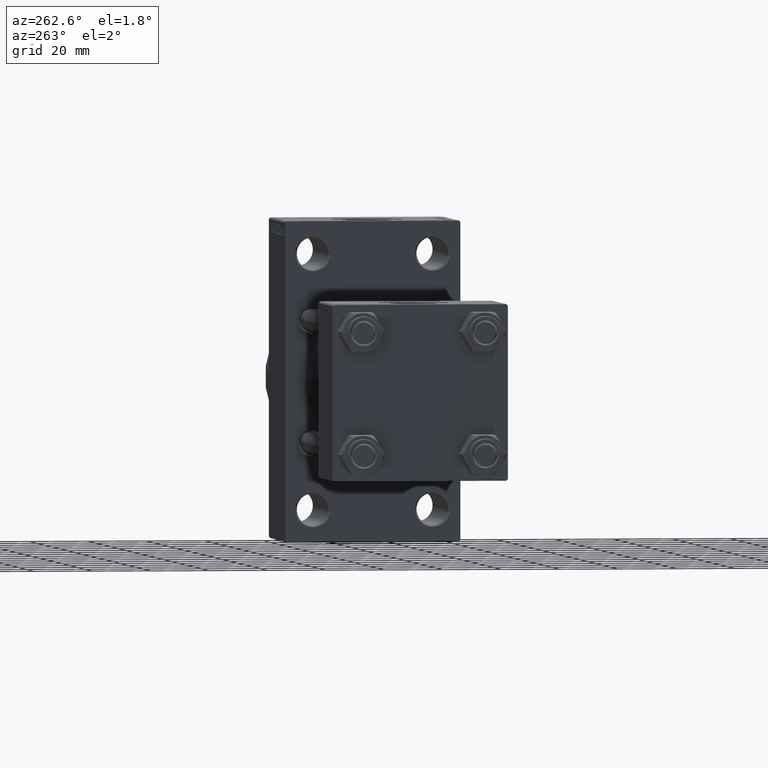
[diagram: clean part render]
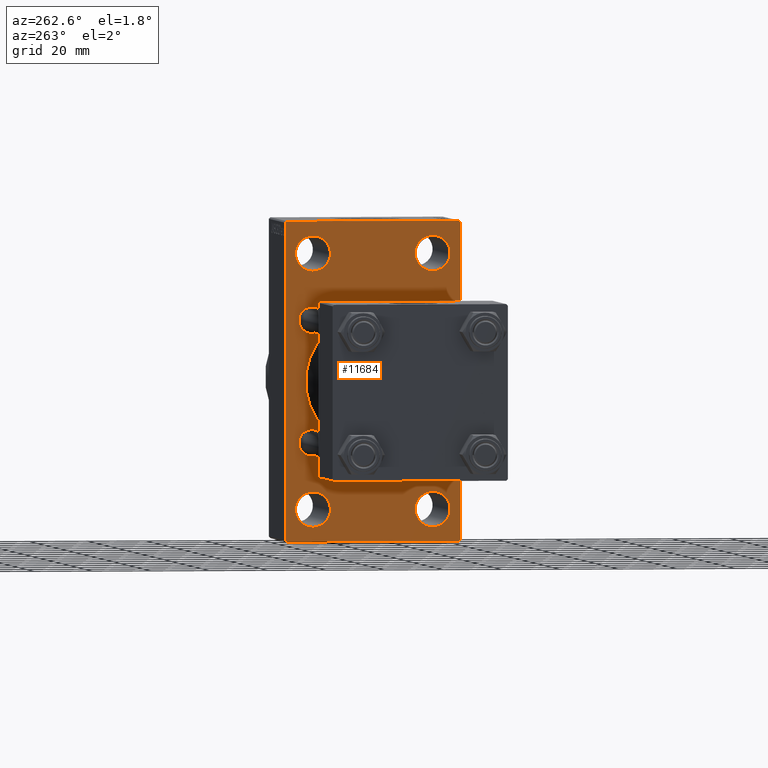
[diagram: same view with one face highlighted and labeled with its STEP entity id]
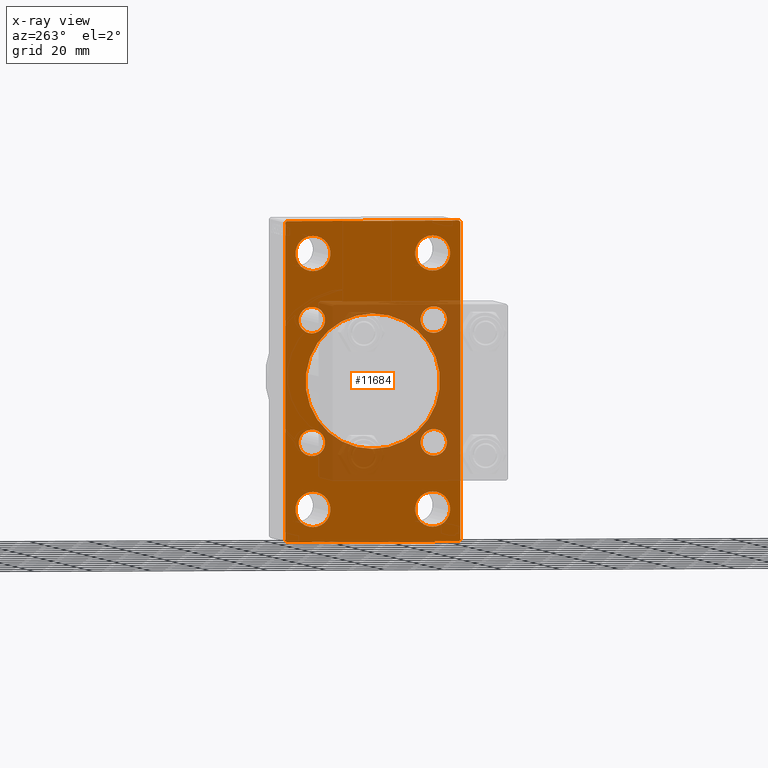
[diagram: x-ray of the same camera — body ghosted, the highlighted face saturated]
A machine part, auxiliary view. The second image highlights one B-rep face of the part: STEP entity #11684.
The next image is the same camera in x-ray: the body ghosted, the highlighted face saturated — about 30% of this face is hidden behind the body in this view.
In plain terms, the highlighted planar face has unit normal (-1, 0, 0).
Its self-contained STEP definition (entity closure, byte-faithful):
#372 = CARTESIAN_POINT ( 'NONE',  ( 125.0000000000000000, 0.000000000000000000, 0.000000000000000000 ) ) ;
#469 = ORIENTED_EDGE ( 'NONE', *, *, #17331, .T. ) ;
#602 = FACE_BOUND ( 'NONE', #41893, .T. ) ;
#668 = CARTESIAN_POINT ( 'NONE',  ( 125.0000000000000000, 29.99999999999999645, -54.49999999999999289 ) ) ;
#694 = EDGE_CURVE ( 'NONE', #26565, #11789, #12203, .T. ) ;
#1002 = DIRECTION ( 'NONE',  ( 1.000000000000000000, -0.000000000000000000, 0.000000000000000000 ) ) ;
#1253 = ORIENTED_EDGE ( 'NONE', *, *, #45491, .T. ) ;
#1782 = EDGE_LOOP ( 'NONE', ( #36041, #32735 ) ) ;
#2308 = VECTOR ( 'NONE', #32911, 1000.000000000000000 ) ;
#2383 = DIRECTION ( 'NONE',  ( 1.000000000000000000, -0.000000000000000000, 0.000000000000000000 ) ) ;
#2419 = DIRECTION ( 'NONE',  ( 0.000000000000000000, 0.000000000000000000, 1.000000000000000000 ) ) ;
#2771 = ORIENTED_EDGE ( 'NONE', *, *, #27358, .T. ) ;
#2783 = AXIS2_PLACEMENT_3D ( 'NONE', #4767, #19319, #4304 ) ;
#3016 = DIRECTION ( 'NONE',  ( 0.000000000000000000, 0.000000000000000000, 1.000000000000000000 ) ) ;
#3372 = ORIENTED_EDGE ( 'NONE', *, *, #36318, .T. ) ;
#3386 = VERTEX_POINT ( 'NONE', #46190 ) ;
#3705 = EDGE_CURVE ( 'NONE', #41054, #24619, #41200, .T. ) ;
#4087 = CIRCLE ( 'NONE', #26163, 5.999999999999977796 ) ;
#4304 = DIRECTION ( 'NONE',  ( 0.000000000000000000, 0.000000000000000000, 1.000000000000000000 ) ) ;
#4371 = CIRCLE ( 'NONE', #31032, 5.999999999999977796 ) ;
#4520 = EDGE_CURVE ( 'NONE', #31603, #39933, #17596, .T. ) ;
#4767 = CARTESIAN_POINT ( 'NONE',  ( 125.0000000000000000, 20.84999999999999787, -20.85000000000000142 ) ) ;
#5124 = ORIENTED_EDGE ( 'NONE', *, *, #27190, .T. ) ;
#5670 = CARTESIAN_POINT ( 'NONE',  ( 125.0000000000000000, -2.602085213965210642E-15, 0.000000000000000000 ) ) ;
#5674 = CARTESIAN_POINT ( 'NONE',  ( 125.0000000000000000, 20.50000000000000000, 49.49999999999997158 ) ) ;
#6123 = CARTESIAN_POINT ( 'NONE',  ( 125.0000000000000000, 20.50000000000000000, -37.50000000000002132 ) ) ;
#6319 = LINE ( 'NONE', #20865, #13209 ) ;
#6537 = CARTESIAN_POINT ( 'NONE',  ( 125.0000000000000000, -30.00000000000000000, 54.50000000000000000 ) ) ;
#6542 = VECTOR ( 'NONE', #7865, 1000.000000000000114 ) ;
#6711 = ORIENTED_EDGE ( 'NONE', *, *, #45604, .T. ) ;
#6966 = DIRECTION ( 'NONE',  ( 0.000000000000000000, 0.000000000000000000, 1.000000000000000000 ) ) ;
#7298 = FACE_OUTER_BOUND ( 'NONE', #38842, .T. ) ;
#7372 = CARTESIAN_POINT ( 'NONE',  ( 125.0000000000000000, 29.99999999999999645, 53.99999999999999289 ) ) ;
#7451 = VERTEX_POINT ( 'NONE', #9719 ) ;
#7567 = ORIENTED_EDGE ( 'NONE', *, *, #18207, .F. ) ;
#7683 = ORIENTED_EDGE ( 'NONE', *, *, #9079, .T. ) ;
#7865 = DIRECTION ( 'NONE',  ( -0.000000000000000000, -0.7071067811865474617, -0.7071067811865474617 ) ) ;
#8385 = AXIS2_PLACEMENT_3D ( 'NONE', #15452, #10691, #29065 ) ;
#8474 = VERTEX_POINT ( 'NONE', #27917 ) ;
#8579 = CARTESIAN_POINT ( 'NONE',  ( 125.0000000000000000, -20.84999999999999076, 20.85000000000000497 ) ) ;
#8595 = VERTEX_POINT ( 'NONE', #18379 ) ;
#8707 = DIRECTION ( 'NONE',  ( 1.000000000000000000, -0.000000000000000000, 0.000000000000000000 ) ) ;
#9079 = EDGE_CURVE ( 'NONE', #27311, #37116, #39064, .T. ) ;
#9118 = EDGE_CURVE ( 'NONE', #24619, #41054, #16181, .T. ) ;
#9199 = CARTESIAN_POINT ( 'NONE',  ( 125.0000000000000000, -2.602085213965210642E-15, 23.00000000000000000 ) ) ;
#9223 = ORIENTED_EDGE ( 'NONE', *, *, #32343, .T. ) ;
#9360 = CARTESIAN_POINT ( 'NONE',  ( 125.0000000000000000, 20.84999999999999787, 16.34999999999999432 ) ) ;
#9410 = VECTOR ( 'NONE', #21653, 1000.000000000000000 ) ;
#9488 = LINE ( 'NONE', #23342, #20090 ) ;
#9719 = CARTESIAN_POINT ( 'NONE',  ( 125.0000000000000000, -20.50000000000000000, 49.49999999999997158 ) ) ;
#9907 = DIRECTION ( 'NONE',  ( 1.000000000000000000, -0.000000000000000000, 0.000000000000000000 ) ) ;
#10025 = DIRECTION ( 'NONE',  ( 0.000000000000000000, 0.000000000000000000, 1.000000000000000000 ) ) ;
#10603 = AXIS2_PLACEMENT_3D ( 'NONE', #32977, #40629, #32728 ) ;
#10655 = ORIENTED_EDGE ( 'NONE', *, *, #40623, .T. ) ;
#10691 = DIRECTION ( 'NONE',  ( 1.000000000000000000, -0.000000000000000000, 0.000000000000000000 ) ) ;
#10869 = CARTESIAN_POINT ( 'NONE',  ( 125.0000000000000000, 29.49999999999999645, -54.49999999999999289 ) ) ;
#11214 = LINE ( 'NONE', #42155, #40654 ) ;
#11604 = AXIS2_PLACEMENT_3D ( 'NONE', #35465, #9907, #17318 ) ;
#11684 = ADVANCED_FACE ( 'NONE', ( #40248, #47170, #18272, #44545, #40734, #44299, #11822, #25894, #602, #7298 ), #39767, .T. ) ;
#11789 = VERTEX_POINT ( 'NONE', #13656 ) ;
#11822 = FACE_BOUND ( 'NONE', #39476, .T. ) ;
#11970 = ORIENTED_EDGE ( 'NONE', *, *, #9118, .T. ) ;
#12203 = CIRCLE ( 'NONE', #21360, 4.500000000000007105 ) ;
#12697 = CIRCLE ( 'NONE', #2783, 4.500000000000007105 ) ;
#12791 = LINE ( 'NONE', #24236, #37192 ) ;
#12857 = EDGE_CURVE ( 'NONE', #40174, #15334, #25836, .T. ) ;
#13067 = CIRCLE ( 'NONE', #11604, 4.500000000000007105 ) ;
#13163 = EDGE_LOOP ( 'NONE', ( #28142, #11970 ) ) ;
#13209 = VECTOR ( 'NONE', #35445, 1000.000000000000000 ) ;
#13462 = CARTESIAN_POINT ( 'NONE',  ( 125.0000000000000000, 20.50000000000000000, 43.50000000000000000 ) ) ;
#13515 = CARTESIAN_POINT ( 'NONE',  ( 125.0000000000000000, -20.50000000000000000, 43.50000000000000000 ) ) ;
#13524 = VERTEX_POINT ( 'NONE', #38520 ) ;
#13656 = CARTESIAN_POINT ( 'NONE',  ( 125.0000000000000000, -20.84999999999999076, 25.35000000000001208 ) ) ;
#13788 = AXIS2_PLACEMENT_3D ( 'NONE', #5670, #16629, #26289 ) ;
#13915 = LINE ( 'NONE', #6537, #45847 ) ;
#14534 = EDGE_CURVE ( 'NONE', #39933, #31603, #22075, .T. ) ;
#14690 = VERTEX_POINT ( 'NONE', #40356 ) ;
#14923 = DIRECTION ( 'NONE',  ( -0.000000000000000000, 0.000000000000000000, 1.000000000000000000 ) ) ;
#14988 = ORIENTED_EDGE ( 'NONE', *, *, #46451, .T. ) ;
#15334 = VERTEX_POINT ( 'NONE', #38929 ) ;
#15403 = AXIS2_PLACEMENT_3D ( 'NONE', #26178, #19466, #23281 ) ;
#15452 = CARTESIAN_POINT ( 'NONE',  ( 125.0000000000000000, -20.84999999999999076, -20.85000000000000497 ) ) ;
#15573 = EDGE_LOOP ( 'NONE', ( #6711, #16727 ) ) ;
#15753 = ORIENTED_EDGE ( 'NONE', *, *, #19648, .T. ) ;
#15774 = EDGE_CURVE ( 'NONE', #42495, #13524, #28959, .T. ) ;
#16181 = CIRCLE ( 'NONE', #42890, 5.999999999999977796 ) ;
#16287 = CARTESIAN_POINT ( 'NONE',  ( 125.0000000000000000, 20.84999999999999787, -16.34999999999999432 ) ) ;
#16316 = DIRECTION ( 'NONE',  ( 0.000000000000000000, 0.000000000000000000, 1.000000000000000000 ) ) ;
#16501 = CARTESIAN_POINT ( 'NONE',  ( 125.0000000000000000, 20.50000000000000000, -43.50000000000000000 ) ) ;
#16629 = DIRECTION ( 'NONE',  ( 1.000000000000000000, 0.000000000000000000, 0.000000000000000000 ) ) ;
#16727 = ORIENTED_EDGE ( 'NONE', *, *, #694, .T. ) ;
#16925 = ORIENTED_EDGE ( 'NONE', *, *, #35300, .T. ) ;
#17318 = DIRECTION ( 'NONE',  ( 0.000000000000000000, 0.000000000000000000, 1.000000000000000000 ) ) ;
#17331 = EDGE_CURVE ( 'NONE', #13524, #42495, #42775, .T. ) ;
#17573 = VERTEX_POINT ( 'NONE', #34660 ) ;
#17596 = CIRCLE ( 'NONE', #20597, 4.500000000000007105 ) ;
#17919 = CARTESIAN_POINT ( 'NONE',  ( 125.0000000000000000, -20.50000000000000000, 43.50000000000000000 ) ) ;
#18202 = CARTESIAN_POINT ( 'NONE',  ( 125.0000000000000000, 20.50000000000000000, 43.50000000000000000 ) ) ;
#18207 = EDGE_CURVE ( 'NONE', #31197, #25908, #13915, .T. ) ;
#18272 = FACE_BOUND ( 'NONE', #1782, .T. ) ;
#18379 = CARTESIAN_POINT ( 'NONE',  ( 125.0000000000000000, 20.84999999999999787, -25.35000000000000853 ) ) ;
#18491 = CIRCLE ( 'NONE', #31516, 23.00000000000000000 ) ;
#19098 = EDGE_LOOP ( 'NONE', ( #29808, #34315 ) ) ;
#19281 = LINE ( 'NONE', #668, #2308 ) ;
#19303 = DIRECTION ( 'NONE',  ( -0.000000000000000000, 0.7071067811865451302, 0.7071067811865500152 ) ) ;
#19319 = DIRECTION ( 'NONE',  ( 1.000000000000000000, -0.000000000000000000, 0.000000000000000000 ) ) ;
#19466 = DIRECTION ( 'NONE',  ( 1.000000000000000000, -0.000000000000000000, 0.000000000000000000 ) ) ;
#19648 = EDGE_CURVE ( 'NONE', #8595, #45955, #13067, .T. ) ;
#19955 = DIRECTION ( 'NONE',  ( 0.000000000000000000, -1.000000000000000000, 1.156482317317871478E-16 ) ) ;
#20090 = VECTOR ( 'NONE', #19303, 1000.000000000000114 ) ;
#20558 = VERTEX_POINT ( 'NONE', #43597 ) ;
#20597 = AXIS2_PLACEMENT_3D ( 'NONE', #25813, #35844, #6966 ) ;
#20865 = CARTESIAN_POINT ( 'NONE',  ( 125.0000000000000000, 42.00000000000082423, 41.99999999999849365 ) ) ;
#21088 = VERTEX_POINT ( 'NONE', #7372 ) ;
#21360 = AXIS2_PLACEMENT_3D ( 'NONE', #8579, #41981, #26480 ) ;
#21653 = DIRECTION ( 'NONE',  ( 0.000000000000000000, -0.7071067811865352493, 0.7071067811865597852 ) ) ;
#22065 = DIRECTION ( 'NONE',  ( -1.000000000000000000, 0.000000000000000000, -0.000000000000000000 ) ) ;
#22075 = CIRCLE ( 'NONE', #31989, 4.500000000000007105 ) ;
#22186 = AXIS2_PLACEMENT_3D ( 'NONE', #13462, #28505, #32339 ) ;
#22299 = AXIS2_PLACEMENT_3D ( 'NONE', #18202, #1002, #43762 ) ;
#22380 = CARTESIAN_POINT ( 'NONE',  ( 125.0000000000000000, -2.602085213965210642E-15, 0.000000000000000000 ) ) ;
#23281 = DIRECTION ( 'NONE',  ( 0.000000000000000000, 0.000000000000000000, 1.000000000000000000 ) ) ;
#23342 = CARTESIAN_POINT ( 'NONE',  ( 125.0000000000000000, -42.00000000000008527, 41.99999999999979394 ) ) ;
#23669 = CARTESIAN_POINT ( 'NONE',  ( 125.0000000000000000, -20.50000000000000000, -43.50000000000000000 ) ) ;
#23734 = EDGE_CURVE ( 'NONE', #8474, #35956, #18491, .T. ) ;
#23974 = ORIENTED_EDGE ( 'NONE', *, *, #38476, .T. ) ;
#24101 = CARTESIAN_POINT ( 'NONE',  ( 125.0000000000000000, 20.84999999999999787, 20.85000000000000142 ) ) ;
#24236 = CARTESIAN_POINT ( 'NONE',  ( 125.0000000000000000, 29.99999999999999645, 54.49999999999999289 ) ) ;
#24619 = VERTEX_POINT ( 'NONE', #38501 ) ;
#24688 = ORIENTED_EDGE ( 'NONE', *, *, #40221, .T. ) ;
#25052 = DIRECTION ( 'NONE',  ( 0.000000000000000000, 0.000000000000000000, 1.000000000000000000 ) ) ;
#25075 = EDGE_CURVE ( 'NONE', #21088, #20558, #11214, .T. ) ;
#25093 = EDGE_LOOP ( 'NONE', ( #7683, #10655 ) ) ;
#25813 = CARTESIAN_POINT ( 'NONE',  ( 125.0000000000000000, 20.84999999999999787, 20.85000000000000142 ) ) ;
#25836 = CIRCLE ( 'NONE', #10603, 5.999999999999977796 ) ;
#25894 = FACE_BOUND ( 'NONE', #45482, .T. ) ;
#25908 = VERTEX_POINT ( 'NONE', #31742 ) ;
#25961 = DIRECTION ( 'NONE',  ( 0.000000000000000000, 0.000000000000000000, -1.000000000000000000 ) ) ;
#26163 = AXIS2_PLACEMENT_3D ( 'NONE', #13515, #39083, #3016 ) ;
#26178 = CARTESIAN_POINT ( 'NONE',  ( 125.0000000000000000, -20.84999999999999076, 20.85000000000000497 ) ) ;
#26196 = CARTESIAN_POINT ( 'NONE',  ( 125.0000000000000000, -29.50000000000000355, -54.50000000000000000 ) ) ;
#26289 = DIRECTION ( 'NONE',  ( 0.000000000000000000, 0.000000000000000000, -1.000000000000000000 ) ) ;
#26449 = VERTEX_POINT ( 'NONE', #26196 ) ;
#26480 = DIRECTION ( 'NONE',  ( 0.000000000000000000, 0.000000000000000000, 1.000000000000000000 ) ) ;
#26565 = VERTEX_POINT ( 'NONE', #40667 ) ;
#27052 = CIRCLE ( 'NONE', #40030, 5.999999999999977796 ) ;
#27070 = CARTESIAN_POINT ( 'NONE',  ( 125.0000000000000000, -20.84999999999999076, -20.85000000000000497 ) ) ;
#27190 = EDGE_CURVE ( 'NONE', #14690, #21088, #6319, .T. ) ;
#27311 = VERTEX_POINT ( 'NONE', #5674 ) ;
#27358 = EDGE_CURVE ( 'NONE', #31197, #17573, #9488, .T. ) ;
#27724 = DIRECTION ( 'NONE',  ( 0.000000000000000000, 0.000000000000000000, 1.000000000000000000 ) ) ;
#27821 = ORIENTED_EDGE ( 'NONE', *, *, #23734, .T. ) ;
#27917 = CARTESIAN_POINT ( 'NONE',  ( 125.0000000000000000, 2.146024240737016609E-16, -23.00000000000000000 ) ) ;
#28142 = ORIENTED_EDGE ( 'NONE', *, *, #3705, .T. ) ;
#28474 = CARTESIAN_POINT ( 'NONE',  ( 125.0000000000000000, 20.50000000000000000, 37.50000000000002132 ) ) ;
#28505 = DIRECTION ( 'NONE',  ( 1.000000000000000000, -0.000000000000000000, 0.000000000000000000 ) ) ;
#28810 = CARTESIAN_POINT ( 'NONE',  ( 125.0000000000000000, -42.00000000000051159, -41.99999999999905498 ) ) ;
#28959 = CIRCLE ( 'NONE', #8385, 4.500000000000007105 ) ;
#29065 = DIRECTION ( 'NONE',  ( 0.000000000000000000, 0.000000000000000000, 1.000000000000000000 ) ) ;
#29070 = CIRCLE ( 'NONE', #13788, 23.00000000000000000 ) ;
#29541 = DIRECTION ( 'NONE',  ( 1.000000000000000000, 0.000000000000000000, 0.000000000000000000 ) ) ;
#29742 = CARTESIAN_POINT ( 'NONE',  ( 125.0000000000000000, -20.50000000000000000, -37.50000000000002132 ) ) ;
#29808 = ORIENTED_EDGE ( 'NONE', *, *, #4520, .T. ) ;
#29877 = CARTESIAN_POINT ( 'NONE',  ( 125.0000000000000000, -20.50000000000000000, -43.50000000000000000 ) ) ;
#30654 = EDGE_CURVE ( 'NONE', #15334, #40174, #27052, .T. ) ;
#31032 = AXIS2_PLACEMENT_3D ( 'NONE', #17919, #36292, #25052 ) ;
#31197 = VERTEX_POINT ( 'NONE', #39608 ) ;
#31516 = AXIS2_PLACEMENT_3D ( 'NONE', #22380, #29541, #25961 ) ;
#31603 = VERTEX_POINT ( 'NONE', #33566 ) ;
#31742 = CARTESIAN_POINT ( 'NONE',  ( 125.0000000000000000, -30.00000000000000000, -53.99999999999998579 ) ) ;
#31989 = AXIS2_PLACEMENT_3D ( 'NONE', #24101, #2383, #10025 ) ;
#32339 = DIRECTION ( 'NONE',  ( 0.000000000000000000, 0.000000000000000000, 1.000000000000000000 ) ) ;
#32343 = EDGE_CURVE ( 'NONE', #20558, #36970, #40815, .T. ) ;
#32728 = DIRECTION ( 'NONE',  ( 0.000000000000000000, 0.000000000000000000, 1.000000000000000000 ) ) ;
#32735 = ORIENTED_EDGE ( 'NONE', *, *, #30654, .T. ) ;
#32911 = DIRECTION ( 'NONE',  ( 0.000000000000000000, -1.000000000000000000, -1.156482317317871478E-16 ) ) ;
#32977 = CARTESIAN_POINT ( 'NONE',  ( 125.0000000000000000, 20.50000000000000000, -43.50000000000000000 ) ) ;
#33554 = AXIS2_PLACEMENT_3D ( 'NONE', #23669, #38260, #2419 ) ;
#33566 = CARTESIAN_POINT ( 'NONE',  ( 125.0000000000000000, 20.84999999999999787, 25.35000000000000853 ) ) ;
#34315 = ORIENTED_EDGE ( 'NONE', *, *, #14534, .T. ) ;
#34660 = CARTESIAN_POINT ( 'NONE',  ( 125.0000000000000000, -29.49999999999997513, 54.50000000000000000 ) ) ;
#34749 = DIRECTION ( 'NONE',  ( 0.000000000000000000, 0.000000000000000000, -1.000000000000000000 ) ) ;
#35300 = EDGE_CURVE ( 'NONE', #45955, #8595, #12697, .T. ) ;
#35445 = DIRECTION ( 'NONE',  ( 0.000000000000000000, 0.7071067811865279218, -0.7071067811865671127 ) ) ;
#35465 = CARTESIAN_POINT ( 'NONE',  ( 125.0000000000000000, 20.84999999999999787, -20.85000000000000142 ) ) ;
#35844 = DIRECTION ( 'NONE',  ( 1.000000000000000000, -0.000000000000000000, 0.000000000000000000 ) ) ;
#35956 = VERTEX_POINT ( 'NONE', #9199 ) ;
#36041 = ORIENTED_EDGE ( 'NONE', *, *, #12857, .T. ) ;
#36139 = EDGE_LOOP ( 'NONE', ( #3372, #1253 ) ) ;
#36292 = DIRECTION ( 'NONE',  ( 1.000000000000000000, -0.000000000000000000, 0.000000000000000000 ) ) ;
#36318 = EDGE_CURVE ( 'NONE', #7451, #3386, #4371, .T. ) ;
#36589 = CARTESIAN_POINT ( 'NONE',  ( 125.0000000000000000, -20.84999999999999076, -16.34999999999999787 ) ) ;
#36970 = VERTEX_POINT ( 'NONE', #10869 ) ;
#37066 = DIRECTION ( 'NONE',  ( 1.000000000000000000, -0.000000000000000000, 0.000000000000000000 ) ) ;
#37116 = VERTEX_POINT ( 'NONE', #28474 ) ;
#37192 = VECTOR ( 'NONE', #19955, 1000.000000000000000 ) ;
#37635 = EDGE_CURVE ( 'NONE', #14690, #17573, #12791, .T. ) ;
#38017 = DIRECTION ( 'NONE',  ( 1.000000000000000000, -0.000000000000000000, 0.000000000000000000 ) ) ;
#38189 = ORIENTED_EDGE ( 'NONE', *, *, #15774, .T. ) ;
#38207 = AXIS2_PLACEMENT_3D ( 'NONE', #27070, #8707, #16316 ) ;
#38260 = DIRECTION ( 'NONE',  ( 1.000000000000000000, -0.000000000000000000, 0.000000000000000000 ) ) ;
#38476 = EDGE_CURVE ( 'NONE', #36970, #26449, #19281, .T. ) ;
#38501 = CARTESIAN_POINT ( 'NONE',  ( 125.0000000000000000, -20.50000000000000000, -49.49999999999997158 ) ) ;
#38520 = CARTESIAN_POINT ( 'NONE',  ( 125.0000000000000000, -20.84999999999999076, -25.35000000000001208 ) ) ;
#38842 = EDGE_LOOP ( 'NONE', ( #23974, #14988, #7567, #2771, #40101, #5124, #46546, #9223 ) ) ;
#38929 = CARTESIAN_POINT ( 'NONE',  ( 125.0000000000000000, 20.50000000000000000, -49.49999999999997158 ) ) ;
#39064 = CIRCLE ( 'NONE', #22299, 5.999999999999977796 ) ;
#39083 = DIRECTION ( 'NONE',  ( 1.000000000000000000, -0.000000000000000000, 0.000000000000000000 ) ) ;
#39104 = LINE ( 'NONE', #28810, #9410 ) ;
#39476 = EDGE_LOOP ( 'NONE', ( #16925, #15753 ) ) ;
#39608 = CARTESIAN_POINT ( 'NONE',  ( 125.0000000000000000, -30.00000000000000000, 53.99999999999997158 ) ) ;
#39767 = PLANE ( 'NONE',  #40312 ) ;
#39933 = VERTEX_POINT ( 'NONE', #9360 ) ;
#40030 = AXIS2_PLACEMENT_3D ( 'NONE', #16501, #38017, #27724 ) ;
#40101 = ORIENTED_EDGE ( 'NONE', *, *, #37635, .F. ) ;
#40174 = VERTEX_POINT ( 'NONE', #6123 ) ;
#40221 = EDGE_CURVE ( 'NONE', #35956, #8474, #29070, .T. ) ;
#40248 = FACE_BOUND ( 'NONE', #36139, .T. ) ;
#40312 = AXIS2_PLACEMENT_3D ( 'NONE', #372, #22065, #14923 ) ;
#40356 = CARTESIAN_POINT ( 'NONE',  ( 125.0000000000000000, 29.50000000000002132, 54.49999999999999289 ) ) ;
#40582 = CARTESIAN_POINT ( 'NONE',  ( 125.0000000000000000, 41.99999999999998579, -41.99999999999998579 ) ) ;
#40623 = EDGE_CURVE ( 'NONE', #37116, #27311, #45080, .T. ) ;
#40629 = DIRECTION ( 'NONE',  ( 1.000000000000000000, -0.000000000000000000, 0.000000000000000000 ) ) ;
#40654 = VECTOR ( 'NONE', #34749, 1000.000000000000000 ) ;
#40667 = CARTESIAN_POINT ( 'NONE',  ( 125.0000000000000000, -20.84999999999999076, 16.34999999999999787 ) ) ;
#40734 = FACE_BOUND ( 'NONE', #15573, .T. ) ;
#40815 = LINE ( 'NONE', #40582, #6542 ) ;
#41054 = VERTEX_POINT ( 'NONE', #29742 ) ;
#41200 = CIRCLE ( 'NONE', #33554, 5.999999999999977796 ) ;
#41893 = EDGE_LOOP ( 'NONE', ( #24688, #27821 ) ) ;
#41981 = DIRECTION ( 'NONE',  ( 1.000000000000000000, -0.000000000000000000, 0.000000000000000000 ) ) ;
#42155 = CARTESIAN_POINT ( 'NONE',  ( 125.0000000000000000, 29.99999999999999645, 54.49999999999999289 ) ) ;
#42172 = CIRCLE ( 'NONE', #15403, 4.500000000000007105 ) ;
#42495 = VERTEX_POINT ( 'NONE', #36589 ) ;
#42775 = CIRCLE ( 'NONE', #38207, 4.500000000000007105 ) ;
#42890 = AXIS2_PLACEMENT_3D ( 'NONE', #29877, #37066, #44223 ) ;
#43077 = DIRECTION ( 'NONE',  ( 0.000000000000000000, 0.000000000000000000, -1.000000000000000000 ) ) ;
#43597 = CARTESIAN_POINT ( 'NONE',  ( 125.0000000000000000, 29.99999999999999645, -53.99999999999999289 ) ) ;
#43762 = DIRECTION ( 'NONE',  ( 0.000000000000000000, 0.000000000000000000, 1.000000000000000000 ) ) ;
#44223 = DIRECTION ( 'NONE',  ( 0.000000000000000000, 0.000000000000000000, 1.000000000000000000 ) ) ;
#44299 = FACE_BOUND ( 'NONE', #19098, .T. ) ;
#44545 = FACE_BOUND ( 'NONE', #25093, .T. ) ;
#45080 = CIRCLE ( 'NONE', #22186, 5.999999999999977796 ) ;
#45482 = EDGE_LOOP ( 'NONE', ( #38189, #469 ) ) ;
#45491 = EDGE_CURVE ( 'NONE', #3386, #7451, #4087, .T. ) ;
#45604 = EDGE_CURVE ( 'NONE', #11789, #26565, #42172, .T. ) ;
#45847 = VECTOR ( 'NONE', #43077, 1000.000000000000000 ) ;
#45955 = VERTEX_POINT ( 'NONE', #16287 ) ;
#46190 = CARTESIAN_POINT ( 'NONE',  ( 125.0000000000000000, -20.50000000000000000, 37.50000000000002132 ) ) ;
#46451 = EDGE_CURVE ( 'NONE', #26449, #25908, #39104, .T. ) ;
#46546 = ORIENTED_EDGE ( 'NONE', *, *, #25075, .T. ) ;
#47170 = FACE_BOUND ( 'NONE', #13163, .T. ) ;